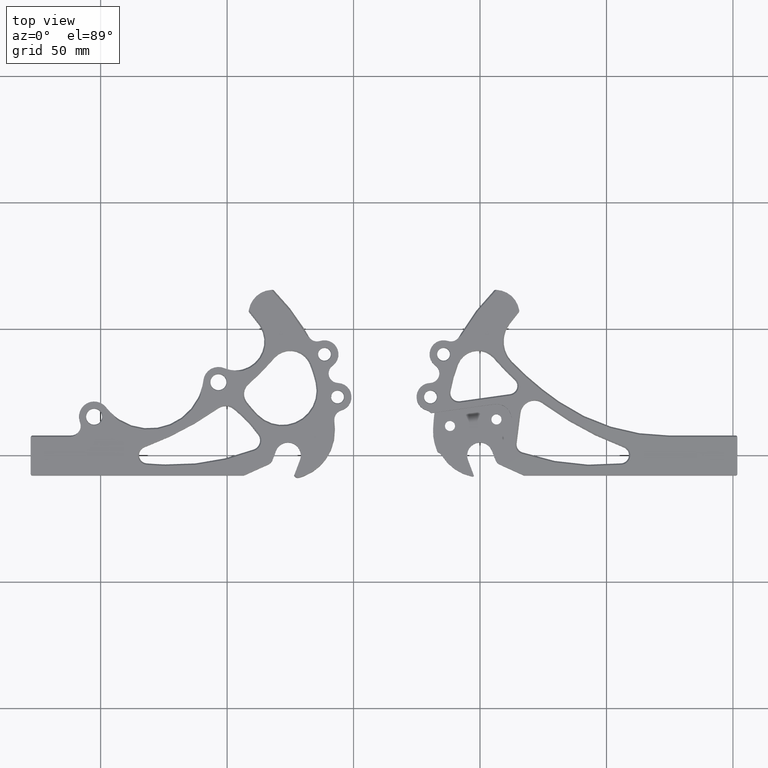
[diagram: clean part render]
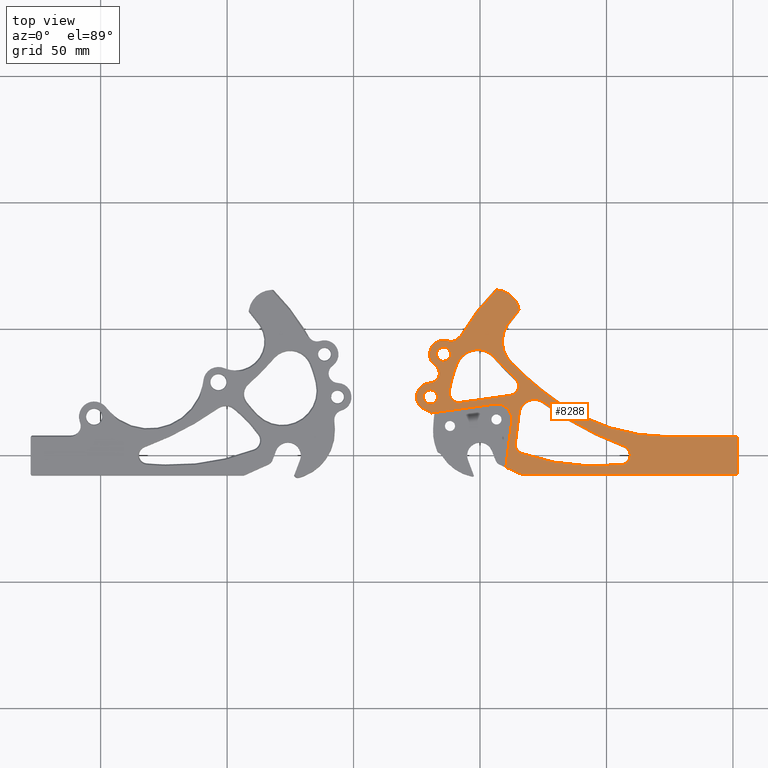
[diagram: same view with one face highlighted and labeled with its STEP entity id]
A machine part, top view. The second image highlights one B-rep face of the part: STEP entity #8288.
In plain terms, the highlighted planar face has unit normal (0, 0, 1).
Its self-contained STEP definition (entity closure, byte-faithful):
#3 = CARTESIAN_POINT ( 'NONE',  ( 14.41569893284230000, -5.736495281540738800, 0.1970000000000000100 ) ) ;
#5 = EDGE_CURVE ( 'NONE', #10105, #2651, #7589, .T. ) ;
#30 = DIRECTION ( 'NONE',  ( 0.0000000000000000000, -0.0000000000000000000, -1.000000000000000000 ) ) ;
#64 = CIRCLE ( 'NONE', #4971, 0.02999999999999940600 ) ;
#99 = ORIENTED_EDGE ( 'NONE', *, *, #6879, .F. ) ;
#112 = DIRECTION ( 'NONE',  ( -0.8487033737781331000, -0.5288691552147983800, 0.0000000000000000000 ) ) ;
#131 = CIRCLE ( 'NONE', #6990, 0.3499999999999413600 ) ;
#133 = ORIENTED_EDGE ( 'NONE', *, *, #6892, .F. ) ;
#143 = EDGE_LOOP ( 'NONE', ( #9354, #6181 ) ) ;
#167 = VERTEX_POINT ( 'NONE', #4479 ) ;
#267 = DIRECTION ( 'NONE',  ( 1.000000000000000000, 1.248844797103872400E-014, 0.0000000000000000000 ) ) ;
#323 = CARTESIAN_POINT ( 'NONE',  ( 15.46229648427415700, -6.300980538296435900, 0.1969999999999985100 ) ) ;
#344 = ORIENTED_EDGE ( 'NONE', *, *, #6752, .F. ) ;
#354 = DIRECTION ( 'NONE',  ( -0.0000000000000000000, 0.0000000000000000000, 1.000000000000000000 ) ) ;
#447 = CARTESIAN_POINT ( 'NONE',  ( 12.40139082220098900, -5.888314618672371400, 0.1970000000000000100 ) ) ;
#487 = DIRECTION ( 'NONE',  ( -0.7668374402188503600, -0.6418413669113273200, 0.0000000000000000000 ) ) ;
#517 = ORIENTED_EDGE ( 'NONE', *, *, #4908, .F. ) ;
#523 = DIRECTION ( 'NONE',  ( 1.000000000000000000, 0.0000000000000000000, 0.0000000000000000000 ) ) ;
#556 = FACE_OUTER_BOUND ( 'NONE', #2289, .T. ) ;
#568 = EDGE_CURVE ( 'NONE', #2425, #7206, #5503, .T. ) ;
#569 = VECTOR ( 'NONE', #8300, 39.37007874015748900 ) ;
#576 = DIRECTION ( 'NONE',  ( 1.000000000000000000, 0.0000000000000000000, 0.0000000000000000000 ) ) ;
#644 = DIRECTION ( 'NONE',  ( 0.8487033737782993000, 0.5288691552145314800, 0.0000000000000000000 ) ) ;
#665 = DIRECTION ( 'NONE',  ( 1.000000000000000000, 0.0000000000000000000, 0.0000000000000000000 ) ) ;
#670 = DIRECTION ( 'NONE',  ( -0.0000000000000000000, 0.0000000000000000000, 1.000000000000000000 ) ) ;
#742 = AXIS2_PLACEMENT_3D ( 'NONE', #1645, #3967, #5505 ) ;
#744 = VERTEX_POINT ( 'NONE', #3494 ) ;
#773 = EDGE_CURVE ( 'NONE', #6298, #9190, #7943, .T. ) ;
#806 = FACE_BOUND ( 'NONE', #9744, .T. ) ;
#940 = EDGE_CURVE ( 'NONE', #167, #6220, #4130, .T. ) ;
#946 = DIRECTION ( 'NONE',  ( 0.0000000000000000000, -0.0000000000000000000, -1.000000000000000000 ) ) ;
#979 = LINE ( 'NONE', #6671, #4619 ) ;
#999 = DIRECTION ( 'NONE',  ( 1.000000000000000000, -7.284927983104739800E-015, 0.0000000000000000000 ) ) ;
#1024 = ORIENTED_EDGE ( 'NONE', *, *, #1386, .T. ) ;
#1047 = CIRCLE ( 'NONE', #7413, 0.1499999999999992200 ) ;
#1054 = EDGE_CURVE ( 'NONE', #9010, #1864, #9629, .T. ) ;
#1063 = DIRECTION ( 'NONE',  ( -0.0000000000000000000, 0.0000000000000000000, 1.000000000000000000 ) ) ;
#1085 = AXIS2_PLACEMENT_3D ( 'NONE', #9039, #1258, #7448 ) ;
#1119 = VECTOR ( 'NONE', #6380, 39.37007874015748100 ) ;
#1126 = EDGE_CURVE ( 'NONE', #8401, #4515, #3396, .T. ) ;
#1154 = EDGE_CURVE ( 'NONE', #744, #1599, #3171, .T. ) ;
#1162 = CARTESIAN_POINT ( 'NONE',  ( 15.46233682315305000, -5.999166621220127600, 0.1970000000000008700 ) ) ;
#1178 = CARTESIAN_POINT ( 'NONE',  ( 15.36253282578499900, -4.943986329298000200, 0.1970000000000000100 ) ) ;
#1191 = EDGE_CURVE ( 'NONE', #4507, #4842, #2928, .T. ) ;
#1192 = DIRECTION ( 'NONE',  ( -0.0000000000000000000, 0.0000000000000000000, 1.000000000000000000 ) ) ;
#1258 = DIRECTION ( 'NONE',  ( 0.0000000000000000000, -0.0000000000000000000, -1.000000000000000000 ) ) ;
#1281 = CARTESIAN_POINT ( 'NONE',  ( 15.75871915068830000, -5.615564889361000000, 0.1970000000000000100 ) ) ;
#1305 = CIRCLE ( 'NONE', #8999, 0.1099999999999985600 ) ;
#1311 = EDGE_CURVE ( 'NONE', #7332, #4610, #131, .T. ) ;
#1359 = ORIENTED_EDGE ( 'NONE', *, *, #568, .T. ) ;
#1377 = CARTESIAN_POINT ( 'NONE',  ( 13.84218950781251500, -5.565325194452868600, 0.1970000000000000100 ) ) ;
#1386 = EDGE_CURVE ( 'NONE', #6198, #2425, #3280, .T. ) ;
#1426 = CIRCLE ( 'NONE', #742, 0.1099999999999985600 ) ;
#1443 = DIRECTION ( 'NONE',  ( 0.0000000000000000000, -0.0000000000000000000, -1.000000000000000000 ) ) ;
#1444 = CARTESIAN_POINT ( 'NONE',  ( 5.878947960301551300, -9.434248375008811700, 0.1970000000000000100 ) ) ;
#1473 = EDGE_CURVE ( 'NONE', #2843, #2290, #979, .T. ) ;
#1477 = ORIENTED_EDGE ( 'NONE', *, *, #1473, .F. ) ;
#1515 = ORIENTED_EDGE ( 'NONE', *, *, #1054, .T. ) ;
#1561 = EDGE_CURVE ( 'NONE', #7830, #5956, #4369, .T. ) ;
#1599 = VERTEX_POINT ( 'NONE', #8663 ) ;
#1601 = EDGE_CURVE ( 'NONE', #9190, #9735, #7141, .T. ) ;
#1607 = ORIENTED_EDGE ( 'NONE', *, *, #1126, .T. ) ;
#1645 = CARTESIAN_POINT ( 'NONE',  ( 15.54171915078100100, -5.615564889361000000, 0.1970000000000000100 ) ) ;
#1648 = CARTESIAN_POINT ( 'NONE',  ( 15.65171915078099800, -5.615564889361000000, 0.1970000000000000100 ) ) ;
#1702 = DIRECTION ( 'NONE',  ( -0.0000000000000000000, 0.0000000000000000000, 1.000000000000000000 ) ) ;
#1800 = AXIS2_PLACEMENT_3D ( 'NONE', #6974, #8508, #3085 ) ;
#1806 = AXIS2_PLACEMENT_3D ( 'NONE', #5011, #9986, #8015 ) ;
#1834 = VERTEX_POINT ( 'NONE', #8075 ) ;
#1838 = CARTESIAN_POINT ( 'NONE',  ( 15.43171915078100100, -5.615564889361000000, 0.1970000000000000100 ) ) ;
#1850 = DIRECTION ( 'NONE',  ( -0.0000000000000000000, 0.0000000000000000000, 1.000000000000000000 ) ) ;
#1859 = CARTESIAN_POINT ( 'NONE',  ( 14.05958919286372800, -5.465189141077103400, 0.1970000000000000100 ) ) ;
#1864 = VERTEX_POINT ( 'NONE', #2208 ) ;
#1919 = CARTESIAN_POINT ( 'NONE',  ( 11.00091637117844600, -6.919999966878722700, 0.1970000000000000100 ) ) ;
#1920 = EDGE_CURVE ( 'NONE', #2904, #2693, #1305, .T. ) ;
#1937 = ORIENTED_EDGE ( 'NONE', *, *, #3338, .F. ) ;
#2022 = DIRECTION ( 'NONE',  ( 1.000000000000000000, -7.284927983099007900E-015, 0.0000000000000000000 ) ) ;
#2031 = DIRECTION ( 'NONE',  ( 1.000000000000000000, -6.244223985518315900E-015, 0.0000000000000000000 ) ) ;
#2066 = CARTESIAN_POINT ( 'NONE',  ( 15.62873664317623800, -5.972099538472942700, 0.1970000000000000100 ) ) ;
#2074 = CARTESIAN_POINT ( 'NONE',  ( 13.78719842071795700, -4.634790158124269000, 0.1970000000000000100 ) ) ;
#2094 = DIRECTION ( 'NONE',  ( 1.000000000000000000, 0.0000000000000000000, 0.0000000000000000000 ) ) ;
#2136 = VECTOR ( 'NONE', #644, 39.37007874015748900 ) ;
#2208 = CARTESIAN_POINT ( 'NONE',  ( 10.67664419726900100, -6.456348635350999600, 0.1970000000000000100 ) ) ;
#2245 = AXIS2_PLACEMENT_3D ( 'NONE', #5012, #4219, #576 ) ;
#2289 = EDGE_LOOP ( 'NONE', ( #5084, #1515, #8674, #8996, #2805, #9487, #133, #3597, #517, #7063, #4301, #99, #4982, #1937, #8384, #3407, #3778, #4737, #1607, #6555, #4323, #344, #5261, #1477 ) ) ;
#2290 = VERTEX_POINT ( 'NONE', #3735 ) ;
#2425 = VERTEX_POINT ( 'NONE', #3632 ) ;
#2531 = CARTESIAN_POINT ( 'NONE',  ( 14.93554187958579300, -6.606476237279353300, 0.1970000000000014800 ) ) ;
#2551 = ORIENTED_EDGE ( 'NONE', *, *, #3611, .T. ) ;
#2606 = CIRCLE ( 'NONE', #9432, 0.1499999999999992200 ) ;
#2616 = DIRECTION ( 'NONE',  ( 1.000000000000000000, 0.0000000000000000000, 0.0000000000000000000 ) ) ;
#2635 = CARTESIAN_POINT ( 'NONE',  ( 14.30614748960171500, -5.190890345803447700, 0.1970000000000000100 ) ) ;
#2651 = VERTEX_POINT ( 'NONE', #8647 ) ;
#2660 = CARTESIAN_POINT ( 'NONE',  ( 13.40551959680070800, -10.78644950901810000, 0.1970000000000000100 ) ) ;
#2691 = VERTEX_POINT ( 'NONE', #9384 ) ;
#2693 = VERTEX_POINT ( 'NONE', #1648 ) ;
#2724 = CARTESIAN_POINT ( 'NONE',  ( 15.48075388886417500, -5.947582107402357800, 0.1970000000000000100 ) ) ;
#2796 = AXIS2_PLACEMENT_3D ( 'NONE', #5897, #5122, #8253 ) ;
#2805 = ORIENTED_EDGE ( 'NONE', *, *, #1601, .F. ) ;
#2833 = VERTEX_POINT ( 'NONE', #6575 ) ;
#2843 = VERTEX_POINT ( 'NONE', #8145 ) ;
#2887 = CARTESIAN_POINT ( 'NONE',  ( 14.90767718428436000, -6.823924460479409100, 0.1970000000000000100 ) ) ;
#2888 = EDGE_CURVE ( 'NONE', #9164, #7619, #10038, .T. ) ;
#2904 = VERTEX_POINT ( 'NONE', #1838 ) ;
#2928 = CIRCLE ( 'NONE', #6388, 0.3750000000000002200 ) ;
#2963 = CIRCLE ( 'NONE', #5260, 0.2393529867080011800 ) ;
#3031 = CARTESIAN_POINT ( 'NONE',  ( 15.46109759199709900, -6.033190573565683200, 0.1970000000000000100 ) ) ;
#3039 = DIRECTION ( 'NONE',  ( 1.000000000000000000, 2.793935448065722400E-015, 0.0000000000000000000 ) ) ;
#3085 = DIRECTION ( 'NONE',  ( 1.000000000000000000, 0.0000000000000000000, 0.0000000000000000000 ) ) ;
#3123 = VERTEX_POINT ( 'NONE', #3485 ) ;
#3161 = CARTESIAN_POINT ( 'NONE',  ( 15.36253282578499900, -4.943986329298000200, 0.1970000000000000100 ) ) ;
#3171 = CIRCLE ( 'NONE', #7706, 3.520000000000001800 ) ;
#3225 = EDGE_CURVE ( 'NONE', #6220, #167, #5763, .T. ) ;
#3263 = ORIENTED_EDGE ( 'NONE', *, *, #1561, .T. ) ;
#3266 = ORIENTED_EDGE ( 'NONE', *, *, #3225, .T. ) ;
#3280 = LINE ( 'NONE', #5891, #3514 ) ;
#3283 = ORIENTED_EDGE ( 'NONE', *, *, #9729, .T. ) ;
#3329 = CARTESIAN_POINT ( 'NONE',  ( 14.45935544567533000, -5.373934089743388000, 0.1970000000000000100 ) ) ;
#3338 = EDGE_CURVE ( 'NONE', #9221, #3123, #6856, .T. ) ;
#3370 = DIRECTION ( 'NONE',  ( -0.0000000000000000000, 0.0000000000000000000, 1.000000000000000000 ) ) ;
#3393 = AXIS2_PLACEMENT_3D ( 'NONE', #5002, #354, #3457 ) ;
#3395 = CARTESIAN_POINT ( 'NONE',  ( 14.94107575597033100, -5.661552702053799500, 0.1970000000000000100 ) ) ;
#3396 = CIRCLE ( 'NONE', #7176, 0.2170000000001818500 ) ;
#3407 = ORIENTED_EDGE ( 'NONE', *, *, #7597, .T. ) ;
#3427 = CIRCLE ( 'NONE', #7148, 0.4700000000005662400 ) ;
#3452 = CARTESIAN_POINT ( 'NONE',  ( 14.94107575597033100, -5.661552702053799500, 0.1970000000000000100 ) ) ;
#3457 = DIRECTION ( 'NONE',  ( 1.000000000000000000, 0.0000000000000000000, 0.0000000000000000000 ) ) ;
#3459 = AXIS2_PLACEMENT_3D ( 'NONE', #3, #6210, #2022 ) ;
#3461 = DIRECTION ( 'NONE',  ( 1.000000000000000000, 0.0000000000000000000, 0.0000000000000000000 ) ) ;
#3485 = CARTESIAN_POINT ( 'NONE',  ( 15.48075388886417500, -5.947582107402357800, 0.1970000000000000100 ) ) ;
#3494 = CARTESIAN_POINT ( 'NONE',  ( 12.27798377501808200, -5.623904629693172700, 0.1970000000000000100 ) ) ;
#3512 = DIRECTION ( 'NONE',  ( 1.000000000000000000, 0.0000000000000000000, 0.0000000000000000000 ) ) ;
#3514 = VECTOR ( 'NONE', #10013, 39.37007874015748900 ) ;
#3542 = CIRCLE ( 'NONE', #3459, 0.1500000000001172300 ) ;
#3587 = CIRCLE ( 'NONE', #8168, 0.2169999999072990100 ) ;
#3597 = ORIENTED_EDGE ( 'NONE', *, *, #4941, .F. ) ;
#3602 = CARTESIAN_POINT ( 'NONE',  ( 14.31941978342364200, -5.621472130013514400, 0.1970000000000000100 ) ) ;
#3611 = EDGE_CURVE ( 'NONE', #1599, #2833, #1047, .T. ) ;
#3632 = CARTESIAN_POINT ( 'NONE',  ( 14.52353710867319600, -5.450617461219027700, 0.1970000000000000100 ) ) ;
#3707 = DIRECTION ( 'NONE',  ( 0.0000000000000000000, -0.0000000000000000000, -1.000000000000000000 ) ) ;
#3711 = EDGE_CURVE ( 'NONE', #2651, #7332, #8105, .T. ) ;
#3735 = CARTESIAN_POINT ( 'NONE',  ( 13.78719842071795700, -4.634790158124269000, 0.1970000000000000100 ) ) ;
#3756 = DIRECTION ( 'NONE',  ( 1.000000000000000000, 0.0000000000000000000, 0.0000000000000000000 ) ) ;
#3762 = CARTESIAN_POINT ( 'NONE',  ( 10.98220010629738800, -6.943445679256512900, 0.1970000000000000100 ) ) ;
#3778 = ORIENTED_EDGE ( 'NONE', *, *, #2888, .F. ) ;
#3848 = EDGE_CURVE ( 'NONE', #5956, #744, #4059, .T. ) ;
#3859 = B_SPLINE_CURVE_WITH_KNOTS ( 'NONE', 3,
 ( #5747, #6556, #323, #6454, #8111, #4168 ),
 .UNSPECIFIED., .F., .F.,
 ( 4, 1, 1, 4 ),
 ( 0.0000000000000000000, 0.006796014335612399400, 0.01361088100727091300, 0.02226141803943652900 ),
 .UNSPECIFIED. ) ;
#3863 = ORIENTED_EDGE ( 'NONE', *, *, #3848, .T. ) ;
#3967 = DIRECTION ( 'NONE',  ( 0.0000000000000000000, -0.0000000000000000000, -1.000000000000000000 ) ) ;
#3981 = CARTESIAN_POINT ( 'NONE',  ( 10.67281165049772300, -6.446954205597450000, 0.1970000000000000100 ) ) ;
#4059 = CIRCLE ( 'NONE', #4072, 0.1500000000000014100 ) ;
#4072 = AXIS2_PLACEMENT_3D ( 'NONE', #5313, #1443, #9890 ) ;
#4130 = CIRCLE ( 'NONE', #2245, 0.1099999999999985600 ) ;
#4154 = EDGE_CURVE ( 'NONE', #1834, #9735, #64, .T. ) ;
#4168 = CARTESIAN_POINT ( 'NONE',  ( 15.37125926860377100, -6.902251857940009400, 0.1970000000000001700 ) ) ;
#4183 = LINE ( 'NONE', #1444, #2136 ) ;
#4219 = DIRECTION ( 'NONE',  ( 0.0000000000000000000, -0.0000000000000000000, -1.000000000000000000 ) ) ;
#4236 = CARTESIAN_POINT ( 'NONE',  ( 11.89386284825636900, -6.375343419883737500, 0.1970000000000000100 ) ) ;
#4267 = CIRCLE ( 'NONE', #7912, 4.870000000000582800 ) ;
#4301 = ORIENTED_EDGE ( 'NONE', *, *, #1191, .T. ) ;
#4309 = CARTESIAN_POINT ( 'NONE',  ( 14.08154249452051400, -5.565325194452868600, 0.1970000000000000100 ) ) ;
#4310 = CARTESIAN_POINT ( 'NONE',  ( 15.59317091056738000, -5.826376929753981100, 0.1970000000000000100 ) ) ;
#4323 = ORIENTED_EDGE ( 'NONE', *, *, #4884, .T. ) ;
#4325 = CARTESIAN_POINT ( 'NONE',  ( 13.72325738350986600, -5.093539968127029000, 0.1970000000000000100 ) ) ;
#4369 = CIRCLE ( 'NONE', #7839, 4.999999999999995600 ) ;
#4479 = CARTESIAN_POINT ( 'NONE',  ( 15.25253282578500000, -4.943986329298000200, 0.1970000000000000100 ) ) ;
#4507 = VERTEX_POINT ( 'NONE', #2887 ) ;
#4515 = VERTEX_POINT ( 'NONE', #6049 ) ;
#4553 = CARTESIAN_POINT ( 'NONE',  ( 13.40551959680067300, -10.78644950901797200, 0.1970000000000000100 ) ) ;
#4596 = EDGE_CURVE ( 'NONE', #3123, #7177, #5439, .T. ) ;
#4607 = CARTESIAN_POINT ( 'NONE',  ( 15.54171915078100100, -5.615564889361000000, 0.1970000000000000100 ) ) ;
#4610 = VERTEX_POINT ( 'NONE', #5028 ) ;
#4619 = VECTOR ( 'NONE', #5354, 39.37007874015748900 ) ;
#4652 = DIRECTION ( 'NONE',  ( 1.000000000000000000, 0.0000000000000000000, 0.0000000000000000000 ) ) ;
#4656 = CIRCLE ( 'NONE', #9167, 0.1500000000926285400 ) ;
#4672 = VECTOR ( 'NONE', #9736, 39.37007874015748900 ) ;
#4737 = ORIENTED_EDGE ( 'NONE', *, *, #9360, .F. ) ;
#4741 = ORIENTED_EDGE ( 'NONE', *, *, #4746, .T. ) ;
#4746 = EDGE_CURVE ( 'NONE', #7206, #10105, #2606, .T. ) ;
#4839 = VERTEX_POINT ( 'NONE', #8710 ) ;
#4842 = VERTEX_POINT ( 'NONE', #6265 ) ;
#4851 = CARTESIAN_POINT ( 'NONE',  ( 14.91308500088777600, -6.791245474914779500, 0.1970000000000014800 ) ) ;
#4875 = VERTEX_POINT ( 'NONE', #1859 ) ;
#4884 = EDGE_CURVE ( 'NONE', #9526, #9117, #9415, .T. ) ;
#4908 = EDGE_CURVE ( 'NONE', #9840, #2691, #5279, .T. ) ;
#4919 = FACE_BOUND ( 'NONE', #8320, .T. ) ;
#4941 = EDGE_CURVE ( 'NONE', #2691, #8734, #3427, .T. ) ;
#4949 = EDGE_CURVE ( 'NONE', #4875, #7083, #2963, .T. ) ;
#4971 = AXIS2_PLACEMENT_3D ( 'NONE', #1919, #1850, #8079 ) ;
#4982 = ORIENTED_EDGE ( 'NONE', *, *, #4596, .F. ) ;
#5002 = CARTESIAN_POINT ( 'NONE',  ( 15.54171915078100100, -5.615564889361000000, 0.1970000000000000100 ) ) ;
#5007 = CARTESIAN_POINT ( 'NONE',  ( 15.22118612445370200, -4.736283371903444300, 0.1970000000000000100 ) ) ;
#5011 = CARTESIAN_POINT ( 'NONE',  ( 13.49104769700490500, -8.938427608694947700, 0.1970000000000000100 ) ) ;
#5012 = CARTESIAN_POINT ( 'NONE',  ( 15.36253282578499900, -4.943986329298000200, 0.1970000000000000100 ) ) ;
#5028 = CARTESIAN_POINT ( 'NONE',  ( 14.84061881097859000, -5.996826324939474000, 0.1970000000000000100 ) ) ;
#5057 = CARTESIAN_POINT ( 'NONE',  ( 14.46702915825320300, -8.380438741605633600, 0.1970000000000000100 ) ) ;
#5063 = AXIS2_PLACEMENT_3D ( 'NONE', #8965, #5197, #4652 ) ;
#5064 = VECTOR ( 'NONE', #112, 39.37007874015748100 ) ;
#5084 = ORIENTED_EDGE ( 'NONE', *, *, #8319, .F. ) ;
#5087 = DIRECTION ( 'NONE',  ( 0.0000000000000000000, -0.0000000000000000000, -1.000000000000000000 ) ) ;
#5122 = DIRECTION ( 'NONE',  ( -0.0000000000000000000, 0.0000000000000000000, 1.000000000000000000 ) ) ;
#5136 = DIRECTION ( 'NONE',  ( 1.000000000000000000, 0.0000000000000000000, 0.0000000000000000000 ) ) ;
#5139 = CARTESIAN_POINT ( 'NONE',  ( 14.38625900876360200, -5.883577880490395100, 0.1970000000000000100 ) ) ;
#5162 = DIRECTION ( 'NONE',  ( -0.0000000000000000000, 0.0000000000000000000, 1.000000000000000000 ) ) ;
#5185 = FACE_BOUND ( 'NONE', #143, .T. ) ;
#5197 = DIRECTION ( 'NONE',  ( -0.0000000000000000000, 0.0000000000000000000, 1.000000000000000000 ) ) ;
#5234 = VERTEX_POINT ( 'NONE', #1281 ) ;
#5256 = EDGE_CURVE ( 'NONE', #10020, #6198, #3542, .T. ) ;
#5260 = AXIS2_PLACEMENT_3D ( 'NONE', #1377, #9844, #3461 ) ;
#5261 = ORIENTED_EDGE ( 'NONE', *, *, #8195, .F. ) ;
#5279 = CIRCLE ( 'NONE', #5063, 0.4700000000005662400 ) ;
#5287 = CARTESIAN_POINT ( 'NONE',  ( 14.47026121039398400, -6.517219450063329600, 0.1970000000000000100 ) ) ;
#5313 = CARTESIAN_POINT ( 'NONE',  ( 12.37126695896297000, -5.741370571962007400, 0.1970000000000000100 ) ) ;
#5314 = DIRECTION ( 'NONE',  ( 1.000000000000000000, 0.0000000000000000000, 0.0000000000000000000 ) ) ;
#5350 = DIRECTION ( 'NONE',  ( 1.000000000000000000, 0.0000000000000000000, 0.0000000000000000000 ) ) ;
#5354 = DIRECTION ( 'NONE',  ( 0.9912457952158698600, 0.1320294416668402700, 0.0000000000000000000 ) ) ;
#5372 = AXIS2_PLACEMENT_3D ( 'NONE', #8917, #5087, #2031 ) ;
#5429 = VECTOR ( 'NONE', #6723, 39.37007874015748100 ) ;
#5439 = B_SPLINE_CURVE_WITH_KNOTS ( 'NONE', 3,
 ( #2724, #7403, #8394, #1162, #7419, #8191 ),
 .UNSPECIFIED., .F., .F.,
 ( 4, 1, 1, 4 ),
 ( 0.001690501459865952500, 0.002205673564410363900, 0.003080736788330565900, 0.003933277839567704200 ),
 .UNSPECIFIED. ) ;
#5503 = LINE ( 'NONE', #10028, #1119 ) ;
#5505 = DIRECTION ( 'NONE',  ( 1.000000000000000000, 0.0000000000000000000, 0.0000000000000000000 ) ) ;
#5684 = CARTESIAN_POINT ( 'NONE',  ( 15.29107575597027400, -5.661552702053799500, 0.1970000000000000100 ) ) ;
#5701 = AXIS2_PLACEMENT_3D ( 'NONE', #9960, #6830, #5314 ) ;
#5712 = DIRECTION ( 'NONE',  ( 1.000000000000000000, 0.0000000000000000000, 0.0000000000000000000 ) ) ;
#5747 = CARTESIAN_POINT ( 'NONE',  ( 15.46109759199709900, -6.033190573565683200, 0.1970000000000000100 ) ) ;
#5763 = CIRCLE ( 'NONE', #8766, 0.1099999999999985600 ) ;
#5833 = AXIS2_PLACEMENT_3D ( 'NONE', #2066, #7064, #6142 ) ;
#5836 = DIRECTION ( 'NONE',  ( 1.000000000000000000, 0.0000000000000000000, 0.0000000000000000000 ) ) ;
#5891 = CARTESIAN_POINT ( 'NONE',  ( 8.666240275243852800, -10.35341789338190400, 0.1970000000000000100 ) ) ;
#5897 = CARTESIAN_POINT ( 'NONE',  ( 10.70210529848244900, -6.440482560694720200, 0.1970000000000000100 ) ) ;
#5956 = VERTEX_POINT ( 'NONE', #447 ) ;
#5957 = EDGE_CURVE ( 'NONE', #7083, #7830, #6238, .T. ) ;
#6030 = CIRCLE ( 'NONE', #1800, 0.1499999999998855900 ) ;
#6031 = ORIENTED_EDGE ( 'NONE', *, *, #5, .T. ) ;
#6043 = PLANE ( 'NONE',  #5701 ) ;
#6049 = CARTESIAN_POINT ( 'NONE',  ( 15.30212696497499000, -4.735563365160687400, 0.1970000000000000100 ) ) ;
#6100 = AXIS2_PLACEMENT_3D ( 'NONE', #4553, #10009, #5350 ) ;
#6116 = ORIENTED_EDGE ( 'NONE', *, *, #3711, .T. ) ;
#6135 = CARTESIAN_POINT ( 'NONE',  ( 15.18814395608900000, -6.574999994198000400, 0.1970000000000000100 ) ) ;
#6142 = DIRECTION ( 'NONE',  ( 1.000000000000000000, 0.0000000000000000000, 0.0000000000000000000 ) ) ;
#6181 = ORIENTED_EDGE ( 'NONE', *, *, #1920, .T. ) ;
#6198 = VERTEX_POINT ( 'NONE', #3602 ) ;
#6210 = DIRECTION ( 'NONE',  ( 0.0000000000000000000, -0.0000000000000000000, -1.000000000000000000 ) ) ;
#6220 = VERTEX_POINT ( 'NONE', #6773 ) ;
#6238 = CIRCLE ( 'NONE', #1085, 0.2393529867080011800 ) ;
#6265 = CARTESIAN_POINT ( 'NONE',  ( 15.37125926860377100, -6.902251857940009400, 0.1970000000000001700 ) ) ;
#6283 = CARTESIAN_POINT ( 'NONE',  ( 14.93931741004003300, -6.546989931653926400, 0.1970000000000000100 ) ) ;
#6298 = VERTEX_POINT ( 'NONE', #7437 ) ;
#6325 = CARTESIAN_POINT ( 'NONE',  ( 15.56607047660799900, -5.249373664821001200, 0.1970000000000000100 ) ) ;
#6380 = DIRECTION ( 'NONE',  ( 0.7668394905522232200, 0.6418389172756717700, 0.0000000000000000000 ) ) ;
#6388 = AXIS2_PLACEMENT_3D ( 'NONE', #6135, #6754, #8939 ) ;
#6454 = CARTESIAN_POINT ( 'NONE',  ( 15.43557545093400100, -6.591280727395462300, 0.1969999999999984800 ) ) ;
#6555 = ORIENTED_EDGE ( 'NONE', *, *, #7835, .F. ) ;
#6556 = CARTESIAN_POINT ( 'NONE',  ( 15.46400040847208700, -6.121983086541257900, 0.1969999999999985100 ) ) ;
#6565 = CARTESIAN_POINT ( 'NONE',  ( 15.41607047651537100, -5.249373664821001200, 0.1970000000000000100 ) ) ;
#6573 = ORIENTED_EDGE ( 'NONE', *, *, #5957, .T. ) ;
#6575 = CARTESIAN_POINT ( 'NONE',  ( 13.85949948019771200, -5.030785756395071800, 0.1970000000000000100 ) ) ;
#6627 = CARTESIAN_POINT ( 'NONE',  ( 15.54171915078100100, -5.615564889361000000, 0.1970000000000000100 ) ) ;
#6643 = ORIENTED_EDGE ( 'NONE', *, *, #9587, .T. ) ;
#6645 = CARTESIAN_POINT ( 'NONE',  ( 14.58399497366427000, -6.061188057401697200, 0.1970000000000000100 ) ) ;
#6671 = CARTESIAN_POINT ( 'NONE',  ( 0.8469071267821843800, -6.358378235663143300, 0.1970000000000000100 ) ) ;
#6723 = DIRECTION ( 'NONE',  ( 0.4183620847858801100, -0.9082803344857864900, 0.0000000000000000000 ) ) ;
#6745 = LINE ( 'NONE', #8171, #4672 ) ;
#6752 = EDGE_CURVE ( 'NONE', #4839, #9117, #9645, .T. ) ;
#6754 = DIRECTION ( 'NONE',  ( -0.0000000000000000000, 0.0000000000000000000, 1.000000000000000000 ) ) ;
#6762 = LINE ( 'NONE', #7528, #569 ) ;
#6773 = CARTESIAN_POINT ( 'NONE',  ( 15.47253282578499700, -4.943986329298000200, 0.1970000000000000100 ) ) ;
#6830 = DIRECTION ( 'NONE',  ( -0.0000000000000000000, 0.0000000000000000000, 1.000000000000000000 ) ) ;
#6856 = CIRCLE ( 'NONE', #5833, 0.1500000000000014100 ) ;
#6879 = EDGE_CURVE ( 'NONE', #7177, #4842, #3859, .T. ) ;
#6892 = EDGE_CURVE ( 'NONE', #8734, #6298, #4267, .T. ) ;
#6974 = CARTESIAN_POINT ( 'NONE',  ( 15.26037176164999900, -4.591492191793999900, 0.1970000000000000100 ) ) ;
#6990 = AXIS2_PLACEMENT_3D ( 'NONE', #3452, #7457, #7364 ) ;
#7018 = EDGE_CURVE ( 'NONE', #9221, #5234, #7213, .T. ) ;
#7063 = ORIENTED_EDGE ( 'NONE', *, *, #7396, .F. ) ;
#7064 = DIRECTION ( 'NONE',  ( -0.0000000000000000000, 0.0000000000000000000, 1.000000000000000000 ) ) ;
#7083 = VERTEX_POINT ( 'NONE', #4309 ) ;
#7125 = CARTESIAN_POINT ( 'NONE',  ( 6.188336416105321400, -9.930739848667409200, 0.1970000000000000100 ) ) ;
#7135 = DIRECTION ( 'NONE',  ( 1.000000000000000000, 0.0000000000000000000, 0.0000000000000000000 ) ) ;
#7141 = LINE ( 'NONE', #7125, #5064 ) ;
#7148 = AXIS2_PLACEMENT_3D ( 'NONE', #5287, #7271, #523 ) ;
#7164 = CARTESIAN_POINT ( 'NONE',  ( 15.02192612433218600, -5.229077662747769800, 0.1970000000000000100 ) ) ;
#7176 = AXIS2_PLACEMENT_3D ( 'NONE', #1178, #670, #2094 ) ;
#7177 = VERTEX_POINT ( 'NONE', #3031 ) ;
#7183 = CARTESIAN_POINT ( 'NONE',  ( 14.93931741004003300, -6.546989931653926400, 0.1970000000000000100 ) ) ;
#7206 = VERTEX_POINT ( 'NONE', #8487 ) ;
#7212 = ORIENTED_EDGE ( 'NONE', *, *, #1311, .T. ) ;
#7213 = CIRCLE ( 'NONE', #3393, 0.2169999999072990100 ) ;
#7271 = DIRECTION ( 'NONE',  ( -0.0000000000000000000, 0.0000000000000000000, 1.000000000000000000 ) ) ;
#7274 = AXIS2_PLACEMENT_3D ( 'NONE', #2635, #7290, #3512 ) ;
#7290 = DIRECTION ( 'NONE',  ( 0.0000000000000000000, 0.0000000000000000000, 1.000000000000000000 ) ) ;
#7332 = VERTEX_POINT ( 'NONE', #5684 ) ;
#7349 = VECTOR ( 'NONE', #487, 39.37007874015748100 ) ;
#7364 = DIRECTION ( 'NONE',  ( 1.000000000000000000, 0.0000000000000000000, 0.0000000000000000000 ) ) ;
#7396 = EDGE_CURVE ( 'NONE', #4507, #9840, #8235, .T. ) ;
#7403 = CARTESIAN_POINT ( 'NONE',  ( 15.47757567449809500, -5.953613679422502100, 0.1970000000000007300 ) ) ;
#7413 = AXIS2_PLACEMENT_3D ( 'NONE', #4325, #9798, #5136 ) ;
#7414 = DIRECTION ( 'NONE',  ( 0.0000000000000000000, -0.0000000000000000000, -1.000000000000000000 ) ) ;
#7419 = CARTESIAN_POINT ( 'NONE',  ( 15.46072273878864000, -6.021724413488883900, 0.1970000000000007900 ) ) ;
#7420 = CARTESIAN_POINT ( 'NONE',  ( 15.55611761863407600, -5.399043102736492900, 0.1970000000000000100 ) ) ;
#7437 = CARTESIAN_POINT ( 'NONE',  ( 13.63066654166264200, -5.921656722760394200, 0.1970000000000000100 ) ) ;
#7448 = DIRECTION ( 'NONE',  ( 1.000000000000000000, 0.0000000000000000000, 0.0000000000000000000 ) ) ;
#7457 = DIRECTION ( 'NONE',  ( 0.0000000000000000000, -0.0000000000000000000, -1.000000000000000000 ) ) ;
#7528 = CARTESIAN_POINT ( 'NONE',  ( 4.792407545410773300, 2.986386773395025300, 0.1970000000000000100 ) ) ;
#7529 = AXIS2_PLACEMENT_3D ( 'NONE', #3395, #30, #267 ) ;
#7589 = CIRCLE ( 'NONE', #5372, 2.100000000000000100 ) ;
#7590 = CARTESIAN_POINT ( 'NONE',  ( 15.16063380571248100, -5.171979684431296000, 0.1970000000000000100 ) ) ;
#7597 = EDGE_CURVE ( 'NONE', #5234, #7619, #3587, .T. ) ;
#7619 = VERTEX_POINT ( 'NONE', #7420 ) ;
#7703 = EDGE_CURVE ( 'NONE', #1834, #1864, #6762, .T. ) ;
#7706 = AXIS2_PLACEMENT_3D ( 'NONE', #5057, #7414, #3039 ) ;
#7802 = DIRECTION ( 'NONE',  ( 0.0000000000000000000, -0.0000000000000000000, -1.000000000000000000 ) ) ;
#7830 = VERTEX_POINT ( 'NONE', #10036 ) ;
#7835 = EDGE_CURVE ( 'NONE', #9526, #4515, #6030, .T. ) ;
#7839 = AXIS2_PLACEMENT_3D ( 'NONE', #9975, #5162, #665 ) ;
#7892 = ORIENTED_EDGE ( 'NONE', *, *, #4949, .T. ) ;
#7912 = AXIS2_PLACEMENT_3D ( 'NONE', #2660, #1063, #5712 ) ;
#7919 = EDGE_CURVE ( 'NONE', #2693, #2904, #1426, .T. ) ;
#7943 = CIRCLE ( 'NONE', #1806, 3.020000000000979200 ) ;
#7972 = CARTESIAN_POINT ( 'NONE',  ( 14.92665848985222600, -6.699032811462641000, 0.1970000000000015100 ) ) ;
#8015 = DIRECTION ( 'NONE',  ( 1.000000000000000000, 0.0000000000000000000, 0.0000000000000000000 ) ) ;
#8055 = ORIENTED_EDGE ( 'NONE', *, *, #5256, .T. ) ;
#8075 = CARTESIAN_POINT ( 'NONE',  ( 10.97545526996499600, -6.935866041534997500, 0.1970000000000000100 ) ) ;
#8079 = DIRECTION ( 'NONE',  ( 1.000000000000000000, 0.0000000000000000000, 0.0000000000000000000 ) ) ;
#8096 = CIRCLE ( 'NONE', #6100, 4.999999999999803700 ) ;
#8105 = CIRCLE ( 'NONE', #7529, 0.3499999999999413600 ) ;
#8111 = CARTESIAN_POINT ( 'NONE',  ( 15.39805264979840500, -6.791872801768682200, 0.1969999999999984800 ) ) ;
#8145 = CARTESIAN_POINT ( 'NONE',  ( 13.52479675885157000, -4.669740868710762000, 0.1970000000000000100 ) ) ;
#8168 = AXIS2_PLACEMENT_3D ( 'NONE', #6627, #1192, #5836 ) ;
#8171 = CARTESIAN_POINT ( 'NONE',  ( 14.05958919286372800, -5.465189141077103400, 0.1970000000000000100 ) ) ;
#8187 = ORIENTED_EDGE ( 'NONE', *, *, #1154, .T. ) ;
#8191 = CARTESIAN_POINT ( 'NONE',  ( 15.46109759199709900, -6.033190573565683200, 0.1970000000000000100 ) ) ;
#8195 = EDGE_CURVE ( 'NONE', #2290, #4839, #10054, .T. ) ;
#8235 = B_SPLINE_CURVE_WITH_KNOTS ( 'NONE', 3,
 ( #9521, #4851, #7972, #2531, #7183 ),
 .UNSPECIFIED., .F., .F.,
 ( 4, 1, 4 ),
 ( 0.003278544582025184500, 0.005797703040889520500, 0.01036189412009662000 ),
 .UNSPECIFIED. ) ;
#8253 = DIRECTION ( 'NONE',  ( 1.000000000000000000, 0.0000000000000000000, 0.0000000000000000000 ) ) ;
#8288 = ADVANCED_FACE ( 'NONE', ( #4919, #806, #8842, #5185, #556 ), #6043, .T. ) ;
#8300 = DIRECTION ( 'NONE',  ( -0.5288691552148479000, 0.8487033737781021200, 0.0000000000000000000 ) ) ;
#8319 = EDGE_CURVE ( 'NONE', #9010, #2843, #4183, .T. ) ;
#8320 = EDGE_LOOP ( 'NONE', ( #8187, #2551, #6643, #7892, #6573, #3263, #3863 ) ) ;
#8367 = DIRECTION ( 'NONE',  ( 1.000000000000000000, 0.0000000000000000000, 0.0000000000000000000 ) ) ;
#8384 = ORIENTED_EDGE ( 'NONE', *, *, #7018, .T. ) ;
#8394 = CARTESIAN_POINT ( 'NONE',  ( 15.46997044536211900, -5.970414293127617200, 0.1970000000000007300 ) ) ;
#8401 = VERTEX_POINT ( 'NONE', #8538 ) ;
#8487 = CARTESIAN_POINT ( 'NONE',  ( 14.92565107738113500, -5.114051077409540900, 0.1970000000000000100 ) ) ;
#8508 = DIRECTION ( 'NONE',  ( -0.0000000000000000000, 0.0000000000000000000, 1.000000000000000000 ) ) ;
#8538 = CARTESIAN_POINT ( 'NONE',  ( 15.48288070106708500, -5.124555952754346500, 0.1970000000000000100 ) ) ;
#8584 = EDGE_LOOP ( 'NONE', ( #3266, #9806 ) ) ;
#8647 = CARTESIAN_POINT ( 'NONE',  ( 15.28554962764932400, -5.599603111817502900, 0.1970000000000000100 ) ) ;
#8663 = CARTESIAN_POINT ( 'NONE',  ( 13.69015181490119900, -4.947238835776330400, 0.1970000000000000100 ) ) ;
#8674 = ORIENTED_EDGE ( 'NONE', *, *, #7703, .F. ) ;
#8710 = CARTESIAN_POINT ( 'NONE',  ( 14.08934091221846600, -5.290753241831786200, 0.1970000000000000100 ) ) ;
#8734 = VERTEX_POINT ( 'NONE', #6645 ) ;
#8766 = AXIS2_PLACEMENT_3D ( 'NONE', #3161, #3707, #3756 ) ;
#8842 = FACE_BOUND ( 'NONE', #8584, .T. ) ;
#8851 = CARTESIAN_POINT ( 'NONE',  ( 15.56607047660799900, -5.249373664821001200, 0.1970000000000000100 ) ) ;
#8899 = CARTESIAN_POINT ( 'NONE',  ( 8.601666812087115600, -10.27680747898506300, 0.1970000000000000100 ) ) ;
#8917 = CARTESIAN_POINT ( 'NONE',  ( 13.21870718279061300, -5.971305019440309000, 0.1970000000000000100 ) ) ;
#8939 = DIRECTION ( 'NONE',  ( 1.000000000000000000, 0.0000000000000000000, 0.0000000000000000000 ) ) ;
#8965 = CARTESIAN_POINT ( 'NONE',  ( 14.47026121039398400, -6.517219450063329600, 0.1970000000000000100 ) ) ;
#8996 = ORIENTED_EDGE ( 'NONE', *, *, #4154, .T. ) ;
#8999 = AXIS2_PLACEMENT_3D ( 'NONE', #4607, #7802, #8367 ) ;
#9010 = VERTEX_POINT ( 'NONE', #3981 ) ;
#9039 = CARTESIAN_POINT ( 'NONE',  ( 13.84218950781251500, -5.565325194452868600, 0.1970000000000000100 ) ) ;
#9117 = VERTEX_POINT ( 'NONE', #3329 ) ;
#9164 = VERTEX_POINT ( 'NONE', #6565 ) ;
#9167 = AXIS2_PLACEMENT_3D ( 'NONE', #6325, #1702, #7135 ) ;
#9172 = AXIS2_PLACEMENT_3D ( 'NONE', #8851, #3370, #2616 ) ;
#9190 = VERTEX_POINT ( 'NONE', #4236 ) ;
#9221 = VERTEX_POINT ( 'NONE', #4310 ) ;
#9354 = ORIENTED_EDGE ( 'NONE', *, *, #7919, .T. ) ;
#9360 = EDGE_CURVE ( 'NONE', #8401, #9164, #4656, .T. ) ;
#9384 = CARTESIAN_POINT ( 'NONE',  ( 14.94026121039454800, -6.517219450063329600, 0.1970000000000000100 ) ) ;
#9415 = LINE ( 'NONE', #8899, #7349 ) ;
#9432 = AXIS2_PLACEMENT_3D ( 'NONE', #7164, #946, #999 ) ;
#9487 = ORIENTED_EDGE ( 'NONE', *, *, #773, .F. ) ;
#9521 = CARTESIAN_POINT ( 'NONE',  ( 14.90767718428436000, -6.823924460479409100, 0.1970000000000000100 ) ) ;
#9526 = VERTEX_POINT ( 'NONE', #5007 ) ;
#9587 = EDGE_CURVE ( 'NONE', #2833, #4875, #6745, .T. ) ;
#9629 = CIRCLE ( 'NONE', #2796, 0.03000000000000159100 ) ;
#9645 = CIRCLE ( 'NONE', #7274, 0.2386999999995933200 ) ;
#9729 = EDGE_CURVE ( 'NONE', #4610, #10020, #8096, .T. ) ;
#9735 = VERTEX_POINT ( 'NONE', #3762 ) ;
#9736 = DIRECTION ( 'NONE',  ( 0.4183614115447572600, -0.9082806445863955700, 0.0000000000000000000 ) ) ;
#9744 = EDGE_LOOP ( 'NONE', ( #8055, #1024, #1359, #4741, #6031, #6116, #7212, #3283 ) ) ;
#9798 = DIRECTION ( 'NONE',  ( 0.0000000000000000000, -0.0000000000000000000, -1.000000000000000000 ) ) ;
#9806 = ORIENTED_EDGE ( 'NONE', *, *, #940, .T. ) ;
#9840 = VERTEX_POINT ( 'NONE', #6283 ) ;
#9844 = DIRECTION ( 'NONE',  ( 0.0000000000000000000, -0.0000000000000000000, -1.000000000000000000 ) ) ;
#9890 = DIRECTION ( 'NONE',  ( 1.000000000000000000, 0.0000000000000000000, 0.0000000000000000000 ) ) ;
#9960 = CARTESIAN_POINT ( 'NONE',  ( 0.0000000000000000000, 0.0000000000000000000, 0.1970000000000000100 ) ) ;
#9975 = CARTESIAN_POINT ( 'NONE',  ( 13.40551959680067300, -10.78644950901797200, 0.1970000000000000100 ) ) ;
#9986 = DIRECTION ( 'NONE',  ( -0.0000000000000000000, 0.0000000000000000000, 1.000000000000000000 ) ) ;
#10009 = DIRECTION ( 'NONE',  ( -0.0000000000000000000, 0.0000000000000000000, 1.000000000000000000 ) ) ;
#10013 = DIRECTION ( 'NONE',  ( 0.7668210101809026500, 0.6418609961238802600, 0.0000000000000000000 ) ) ;
#10020 = VERTEX_POINT ( 'NONE', #5139 ) ;
#10028 = CARTESIAN_POINT ( 'NONE',  ( 8.665801010467836500, -10.35349875682270200, 0.1970000000000000100 ) ) ;
#10036 = CARTESIAN_POINT ( 'NONE',  ( 13.82224081421189200, -5.803845428122192700, 0.1970000000000000100 ) ) ;
#10038 = CIRCLE ( 'NONE', #9172, 0.1500000000926285400 ) ;
#10054 = LINE ( 'NONE', #2074, #5429 ) ;
#10105 = VERTEX_POINT ( 'NONE', #7590 ) ;